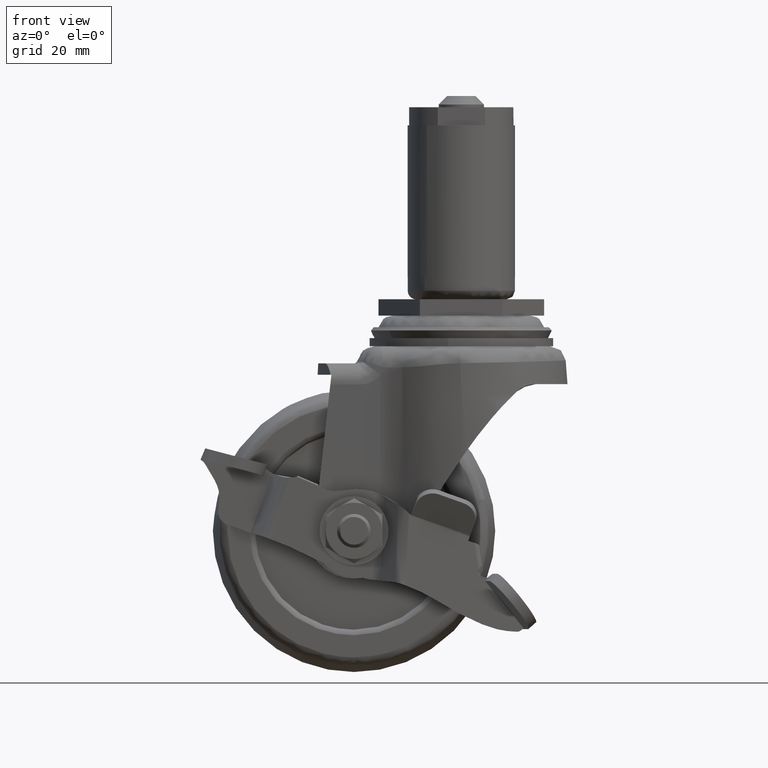
[diagram: clean part render]
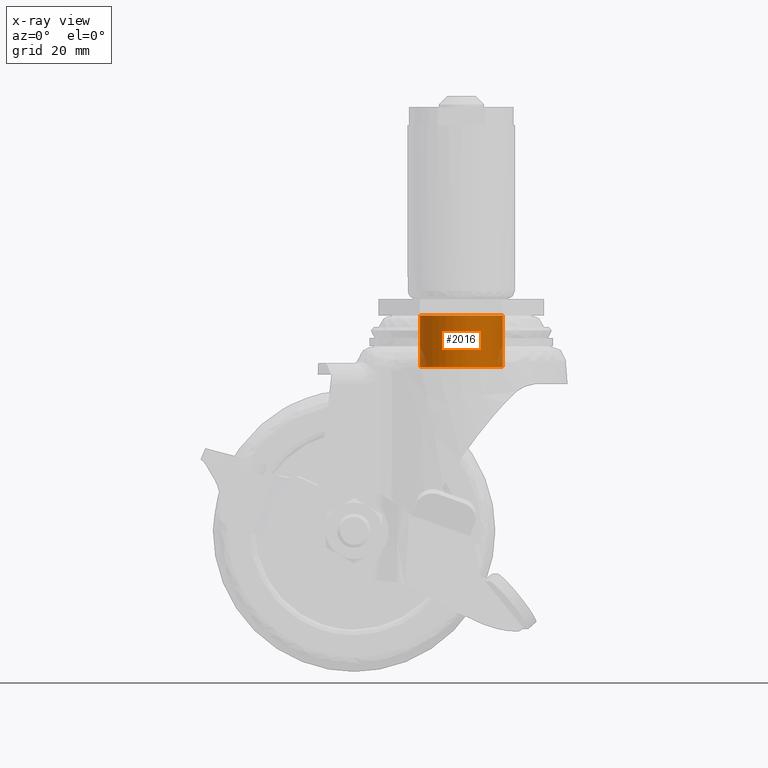
[diagram: x-ray — body ghosted, one internal face saturated and labeled with its STEP entity id]
A machine part, front view, then the same camera in x-ray: the body is ghosted and one INTERNAL B-rep face — a face not visible from any outside direction — is saturated and labeled: STEP entity #2016.
In plain terms, the highlighted face is a freeform B-spline surface patch.
Its self-contained STEP definition (entity closure, byte-faithful):
#1867=CARTESIAN_POINT('',(4.733276226499480,5.596847591640747,-2.671990599996415));
#1868=CARTESIAN_POINT('',(4.893455600003878,5.461383259591338,-2.671990599996416));
#1869=CARTESIAN_POINT('',(5.045625272743702,5.316979632032647,-2.671990599996416));
#1870=CARTESIAN_POINT('',(10.362604904776349,0.271354359288945,-2.671990599996417));
#1871=CARTESIAN_POINT('',(5.316979632032647,-5.045625272743702,-2.671990599996416));
#1872=CARTESIAN_POINT('',(0.271354359288945,-10.362604904776349,-2.671990599996417));
#1873=CARTESIAN_POINT('',(-5.045625272743702,-5.316979632032647,-2.671990599996416));
#1874=CARTESIAN_POINT('',(-10.362604904776349,-0.271354359288945,-2.671990599996417));
#1875=CARTESIAN_POINT('',(-5.316979632032647,5.045625272743702,-2.671990599996416));
#1876=CARTESIAN_POINT('',(4.733276226499480,5.596847591640747,-12.253623360147035));
#1877=CARTESIAN_POINT('',(4.893455600003878,5.461383259591338,-12.253623360147039));
#1878=CARTESIAN_POINT('',(5.045625272743702,5.316979632032647,-12.253623360147030));
#1879=CARTESIAN_POINT('',(10.362604904776349,0.271354359288945,-12.253623360147033));
#1880=CARTESIAN_POINT('',(5.316979632032647,-5.045625272743702,-12.253623360147030));
#1881=CARTESIAN_POINT('',(0.271354359288945,-10.362604904776349,-12.253623360147033));
#1882=CARTESIAN_POINT('',(-5.045625272743702,-5.316979632032647,-12.253623360147030));
#1883=CARTESIAN_POINT('',(-10.362604904776349,-0.271354359288945,-12.253623360147033));
#1884=CARTESIAN_POINT('',(-5.316979632032647,5.045625272743702,-12.253623360147030));
#1892=(BOUNDED_SURFACE()B_SPLINE_SURFACE(2,1,((#1867,#1876),(#1868,#1877),(#1869,#1878),(#1870,#1879),(#1871,#1880),(#1872,#1881),(#1873,#1882),(#1874,#1883),(#1875,#1884)),.UNSPECIFIED.,.F.,.F.,.U.)B_SPLINE_SURFACE_WITH_KNOTS((3,2,2,2,3),(2,2),(0.0,0.485788340467767,12.630496852161921,24.775205363856070,36.919913875550229),(0.0,9.581632760150621),.UNSPECIFIED.)GEOMETRIC_REPRESENTATION_ITEM()RATIONAL_B_SPLINE_SURFACE(((0.977505800795127,0.977505800795127),(0.988284271247462,0.988284271247462),(1.0,1.0),(0.707106781186548,0.707106781186548),(1.0,1.0),(0.707106781186548,0.707106781186548),(1.0,1.0),(0.707106781186548,0.707106781186548),(1.0,1.0)))REPRESENTATION_ITEM('')SURFACE());
#1893=CARTESIAN_POINT('',(4.733276486216429,5.596847716192892,-12.019925000146751));
#1894=VERTEX_POINT('',#1893);
#1895=CARTESIAN_POINT('',(7.329980000000000,0.0,-12.019925000143360));
#1896=VERTEX_POINT('',#1895);
#1897=CARTESIAN_POINT('',(4.733276486216429,5.596847716192892,-12.019925000146751));
#1898=CARTESIAN_POINT('',(5.138553879431415,5.254222606759141,-12.019925000146550));
#1899=CARTESIAN_POINT('',(5.851133184787550,4.504569447199610,-12.019925000146060));
#1900=CARTESIAN_POINT('',(6.722327028907069,3.083266587253671,-12.019925000145220));
#1901=CARTESIAN_POINT('',(7.225770521543901,1.558924630776432,-12.019925000144340));
#1902=CARTESIAN_POINT('',(7.330001044517553,0.464349385896066,-12.019925000143630));
#1903=CARTESIAN_POINT('',(7.329980000000000,0.0,-12.019925000143360));
#1904=B_SPLINE_CURVE_WITH_KNOTS('',3,(#1897,#1898,#1899,#1900,#1901,#1902,#1903),.UNSPECIFIED.,.F.,.U.,(4,1,1,1,4),(0.000000056903489,1.592087597621066,3.084694176506228,4.975272366880875,6.368347410141562),.UNSPECIFIED.);
#1905=EDGE_CURVE('',#1894,#1896,#1904,.T.);
#1906=ORIENTED_EDGE('',*,*,#1905,.F.);
#1907=CARTESIAN_POINT('',(4.733276485098705,5.596847717138184,-2.899989000000000));
#1908=VERTEX_POINT('',#1907);
#1909=CARTESIAN_POINT('',(4.733276485098705,5.596847717138184,-2.899989000000000));
#1910=CARTESIAN_POINT('',(4.733276486216429,5.596847716192892,-12.019925000146751));
#1911=QUASI_UNIFORM_CURVE('',1,(#1909,#1910),.UNSPECIFIED.,.F.,.U.);
#1912=EDGE_CURVE('',#1908,#1894,#1911,.T.);
#1913=ORIENTED_EDGE('',*,*,#1912,.F.);
#1914=CARTESIAN_POINT('',(7.329980000000000,0.0,-2.899989000000000));
#1915=VERTEX_POINT('',#1914);
#1916=CARTESIAN_POINT('',(4.733276485098705,5.596847717138184,-2.899989000000000));
#1917=CARTESIAN_POINT('',(5.392187250956658,5.040402442311509,-2.899989000000001));
#1918=CARTESIAN_POINT('',(6.380614257739675,3.846956937539458,-2.899989000000000));
#1919=CARTESIAN_POINT('',(7.175192711872950,1.857380747402295,-2.899989000000000));
#1920=CARTESIAN_POINT('',(7.330112073430865,0.597033952390673,-2.899989000000001));
#1921=CARTESIAN_POINT('',(7.329980000000000,0.0,-2.899989000000000));
#1922=B_SPLINE_CURVE_WITH_KNOTS('',3,(#1916,#1917,#1918,#1919,#1920,#1921),.UNSPECIFIED.,.F.,.U.,(4,1,1,4),(0.000000056903287,2.587161528801918,4.577248803171159,6.368347411605464),.UNSPECIFIED.);
#1923=EDGE_CURVE('',#1908,#1915,#1922,.T.);
#1924=ORIENTED_EDGE('',*,*,#1923,.T.);
#1925=CARTESIAN_POINT('',(-0.000001066047434,-7.329979999999923,-2.899989000000000));
#1926=VERTEX_POINT('',#1925);
#1927=CARTESIAN_POINT('',(7.329980000000000,0.0,-2.899989000000000));
#1928=CARTESIAN_POINT('',(7.330103677014236,-0.569709318140765,-2.899989000000006));
#1929=CARTESIAN_POINT('',(7.224554209782249,-1.469169420609876,-2.899988999999998));
#1930=CARTESIAN_POINT('',(6.806246133409630,-2.818290989357279,-2.899989000000004));
#1931=CARTESIAN_POINT('',(6.147829066187069,-4.106909851322358,-2.899989000000002));
#1932=CARTESIAN_POINT('',(5.078029568689349,-5.378283046281277,-2.899988999999978));
#1933=CARTESIAN_POINT('',(3.721092845204798,-6.384624602293694,-2.899989000000020));
#1934=CARTESIAN_POINT('',(2.038724952022954,-7.130428689151899,-2.899988999999975));
#1935=CARTESIAN_POINT('',(0.749643185765329,-7.330312152192568,-2.899989000000008));
#1936=CARTESIAN_POINT('',(-0.000001066047434,-7.329979999999923,-2.899989000000000));
#1937=B_SPLINE_CURVE_WITH_KNOTS('',3,(#1927,#1928,#1929,#1930,#1931,#1932,#1933,#1934,#1935,#1936),.UNSPECIFIED.,.F.,.U.,(4,1,1,1,1,1,1,4),(0.000000185226105,1.709104154606393,2.698588841132404,4.227798381335383,6.026840085167575,7.645977990349840,9.265158485098294,11.513978505209071),.UNSPECIFIED.);
#1938=EDGE_CURVE('',#1915,#1926,#1937,.T.);
#1939=ORIENTED_EDGE('',*,*,#1938,.T.);
#1940=CARTESIAN_POINT('',(-7.329980000000000,0.0,-2.899989000000000));
#1941=VERTEX_POINT('',#1940);
#1942=CARTESIAN_POINT('',(-0.000001066047434,-7.329979999999923,-2.899989000000000));
#1943=CARTESIAN_POINT('',(-0.719656912422279,-7.330278215973248,-2.899989000000013));
#1944=CARTESIAN_POINT('',(-1.828867933286343,-7.165244531694071,-2.899988999999988));
#1945=CARTESIAN_POINT('',(-3.452751539493107,-6.527365603998889,-2.899988999999999));
#1946=CARTESIAN_POINT('',(-4.815836447374799,-5.628789124838677,-2.899989000000032));
#1947=CARTESIAN_POINT('',(-5.931576197594181,-4.397538104498920,-2.899988999999961));
#1948=CARTESIAN_POINT('',(-6.674064146114029,-3.123420960499910,-2.899989000000105));
#1949=CARTESIAN_POINT('',(-7.189991352832701,-1.709004631350080,-2.899988999999925));
#1950=CARTESIAN_POINT('',(-7.330171061520771,-0.629678370909855,-2.899989000000028));
#1951=CARTESIAN_POINT('',(-7.329980000000000,0.0,-2.899989000000000));
#1952=B_SPLINE_CURVE_WITH_KNOTS('',3,(#1942,#1943,#1944,#1945,#1946,#1947,#1948,#1949,#1950,#1951),.UNSPECIFIED.,.F.,.U.,(4,1,1,1,1,1,1,4),(0.000000185596591,2.158860212539207,3.328270303307626,5.217281682712028,7.016319976465463,8.275669995821531,9.624988861080174,11.513977303517629),.UNSPECIFIED.);
#1953=EDGE_CURVE('',#1926,#1941,#1952,.T.);
#1954=ORIENTED_EDGE('',*,*,#1953,.T.);
#1955=CARTESIAN_POINT('',(-5.316979420310029,5.045625109211002,-2.899989000000001));
#1956=VERTEX_POINT('',#1955);
#1957=CARTESIAN_POINT('',(-7.329980000000000,0.0,-2.899989000000000));
#1958=CARTESIAN_POINT('',(-7.330250122797792,0.695666091665340,-2.899988999999991));
#1959=CARTESIAN_POINT('',(-7.163625864847176,1.854871962689968,-2.899989000000009));
#1960=CARTESIAN_POINT('',(-6.473125109794912,3.585632082211814,-2.899988999999997));
#1961=CARTESIAN_POINT('',(-5.796052604389847,4.541206619218293,-2.899989000000002));
#1962=CARTESIAN_POINT('',(-5.316979420310029,5.045625109211002,-2.899989000000001));
#1963=B_SPLINE_CURVE_WITH_KNOTS('',3,(#1957,#1958,#1959,#1960,#1961,#1962),.UNSPECIFIED.,.F.,.U.,(4,1,1,4),(0.000000043484354,2.086908337631681,3.478178663381738,5.565086957515137),.UNSPECIFIED.);
#1964=EDGE_CURVE('',#1941,#1956,#1963,.T.);
#1965=ORIENTED_EDGE('',*,*,#1964,.T.);
#1966=CARTESIAN_POINT('',(-5.316979420095953,5.045625109436624,-12.019925000143100));
#1967=VERTEX_POINT('',#1966);
#1968=CARTESIAN_POINT('',(-5.316979420310029,5.045625109211002,-2.899989000000001));
#1969=CARTESIAN_POINT('',(-5.316979420095953,5.045625109436624,-12.019925000143100));
#1970=QUASI_UNIFORM_CURVE('',1,(#1968,#1969),.UNSPECIFIED.,.F.,.U.);
#1971=EDGE_CURVE('',#1956,#1967,#1970,.T.);
#1972=ORIENTED_EDGE('',*,*,#1971,.T.);
#1973=CARTESIAN_POINT('',(-7.329980000000000,0.0,-12.019925000143360));
#1974=VERTEX_POINT('',#1973);
#1975=CARTESIAN_POINT('',(-7.329980000000000,0.0,-12.019925000143360));
#1976=CARTESIAN_POINT('',(-7.330082612422860,0.550719009030251,-12.019925000143340));
#1977=CARTESIAN_POINT('',(-7.228220571142787,1.449199599264785,-12.019925000143299));
#1978=CARTESIAN_POINT('',(-6.829088707667626,2.755321044859994,-12.019925000143180));
#1979=CARTESIAN_POINT('',(-6.244339360014978,3.927779809631628,-12.019925000143241));
#1980=CARTESIAN_POINT('',(-5.656203944106069,4.688242252729094,-12.019925000143070));
#1981=CARTESIAN_POINT('',(-5.316979420095953,5.045625109436624,-12.019925000143100));
#1982=B_SPLINE_CURVE_WITH_KNOTS('',3,(#1975,#1976,#1977,#1978,#1979,#1980,#1981),.UNSPECIFIED.,.F.,.U.,(4,1,1,1,4),(0.000000043483920,1.652137570210287,2.695616511295424,4.086859132068291,5.565086957826171),.UNSPECIFIED.);
#1983=EDGE_CURVE('',#1974,#1967,#1982,.T.);
#1984=ORIENTED_EDGE('',*,*,#1983,.F.);
#1985=CARTESIAN_POINT('',(-0.000001066047521,-7.329979999999922,-12.019925000143360));
#1986=VERTEX_POINT('',#1985);
#1987=CARTESIAN_POINT('',(-0.000001066047521,-7.329979999999922,-12.019925000143360));
#1988=CARTESIAN_POINT('',(-0.569705612178490,-7.330094176636104,-12.019925000143360));
#1989=CARTESIAN_POINT('',(-1.739049793370435,-7.192984402145400,-12.019925000143340));
#1990=CARTESIAN_POINT('',(-3.409843605728300,-6.572110582103552,-12.019925000143379));
#1991=CARTESIAN_POINT('',(-4.854677471641578,-5.580726503780102,-12.019925000143379));
#1992=CARTESIAN_POINT('',(-5.928341721421798,-4.395995736921134,-12.019925000143390));
#1993=CARTESIAN_POINT('',(-6.725105694674998,-3.048061900962629,-12.019925000143330));
#1994=CARTESIAN_POINT('',(-7.216990958803466,-1.589155617844510,-12.019925000143379));
#1995=CARTESIAN_POINT('',(-7.330040917327480,-0.509730340920355,-12.019925000143351));
#1996=CARTESIAN_POINT('',(-7.329980000000000,0.0,-12.019925000143360));
#1997=B_SPLINE_CURVE_WITH_KNOTS('',3,(#1987,#1988,#1989,#1990,#1991,#1992,#1993,#1994,#1995,#1996),.UNSPECIFIED.,.F.,.U.,(4,1,1,1,1,1,1,4),(0.000000185596392,1.709103976370217,3.508174815707724,5.307268709655523,6.926338204881471,8.275669995821488,9.984779225402434,11.513977303517580),.UNSPECIFIED.);
#1998=EDGE_CURVE('',#1986,#1974,#1997,.T.);
#1999=ORIENTED_EDGE('',*,*,#1998,.F.);
#2000=CARTESIAN_POINT('',(7.329980000000000,0.0,-12.019925000143360));
#2001=CARTESIAN_POINT('',(7.330023637481037,-0.449751316625596,-12.019925000143351));
#2002=CARTESIAN_POINT('',(7.246943103166794,-1.349264529026865,-12.019925000143379));
#2003=CARTESIAN_POINT('',(6.902177743459019,-2.566041101984676,-12.019925000143351));
#2004=CARTESIAN_POINT('',(6.349386077827273,-3.734727844312215,-12.019925000143370));
#2005=CARTESIAN_POINT('',(5.464816576743041,-4.991218654487833,-12.019925000143360));
#2006=CARTESIAN_POINT('',(4.255929451440138,-6.046932573306768,-12.019925000143360));
#2007=CARTESIAN_POINT('',(2.822563980660505,-6.812909491547204,-12.019925000143299));
#2008=CARTESIAN_POINT('',(1.469198869335729,-7.232520644995893,-12.019925000143420));
#2009=CARTESIAN_POINT('',(0.479737372586231,-7.330030041525902,-12.019925000143351));
#2010=CARTESIAN_POINT('',(-0.000001066047521,-7.329979999999922,-12.019925000143360));
#2011=B_SPLINE_CURVE_WITH_KNOTS('',3,(#2000,#2001,#2002,#2003,#2004,#2005,#2006,#2007,#2008,#2009,#2010),.UNSPECIFIED.,.F.,.U.,(4,1,1,1,1,1,1,1,4),(0.000000185226011,1.349258140894651,2.698588841132438,3.778041572001913,5.217282225829292,7.286187588168885,8.545529587395494,10.074761655293941,11.513978505209129),.UNSPECIFIED.);
#2012=EDGE_CURVE('',#1896,#1986,#2011,.T.);
#2013=ORIENTED_EDGE('',*,*,#2012,.F.);
#2014=EDGE_LOOP('',(#1906,#1913,#1924,#1939,#1954,#1965,#1972,#1984,#1999,#2013));
#2015=FACE_OUTER_BOUND('',#2014,.T.);
#2016=ADVANCED_FACE('',(#2015),#1892,.T.);